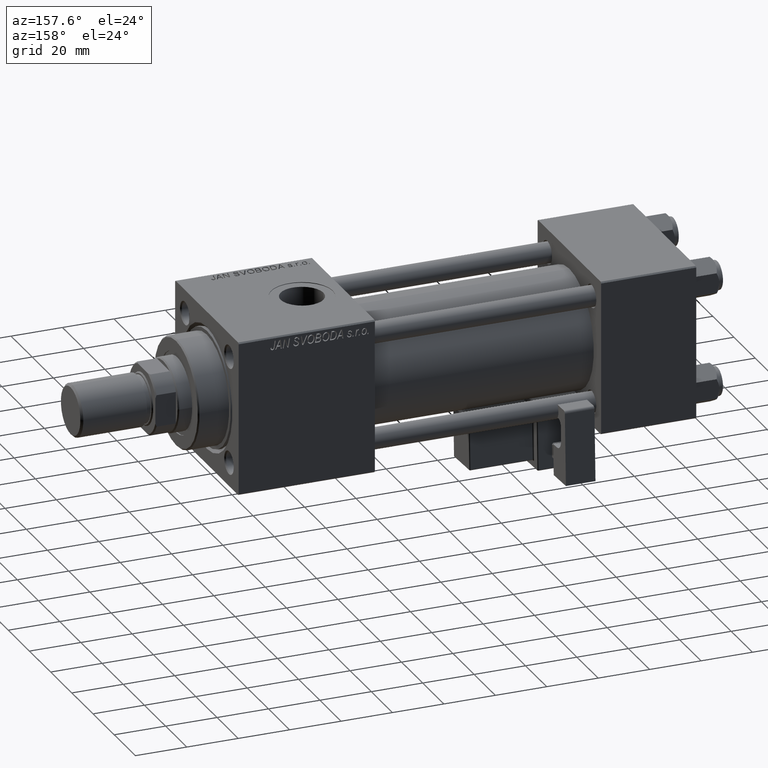
[diagram: clean part render]
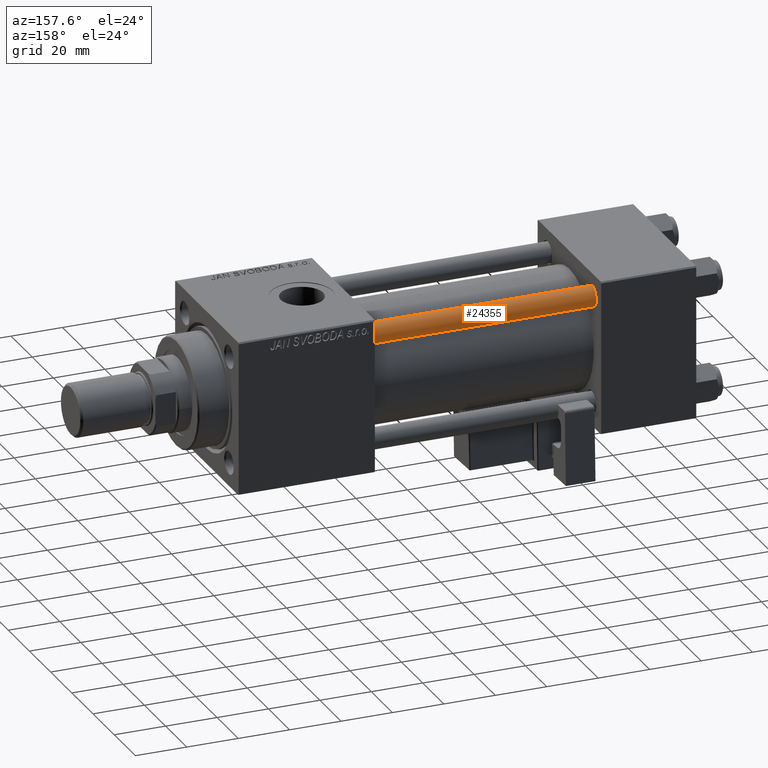
[diagram: same view with one face highlighted and labeled with its STEP entity id]
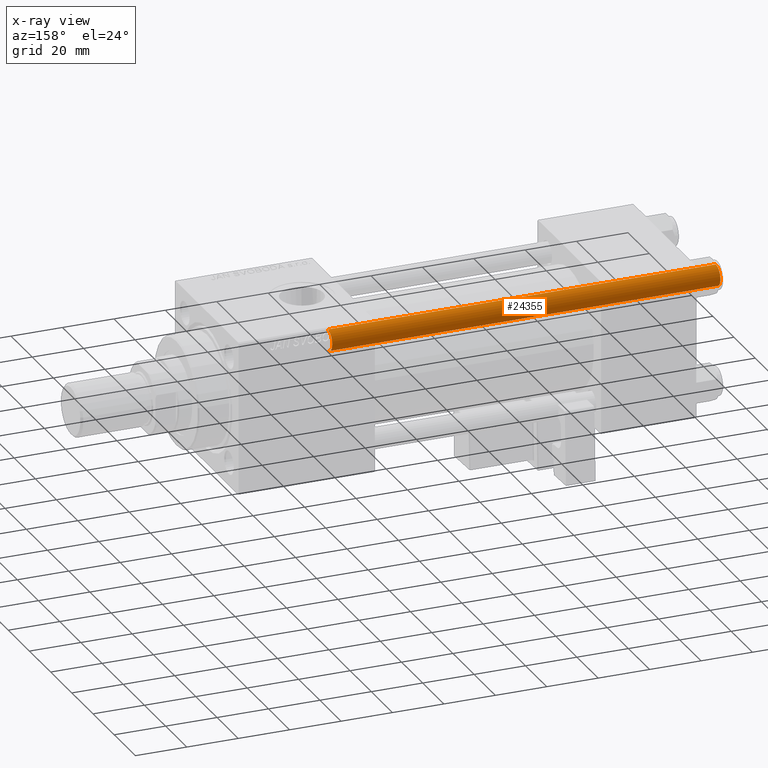
[diagram: x-ray of the same camera — body ghosted, the highlighted face saturated]
A machine part, auxiliary view. The second image highlights one B-rep face of the part: STEP entity #24355.
The next image is the same camera in x-ray: the body ghosted, the highlighted face saturated — about 0% of this face is hidden behind the body in this view.
In plain terms, the highlighted cylindrical surface (edge-blend (fillet) strip) has radius 4 mm, axis along (-1, 0, 0).
Its self-contained STEP definition (entity closure, byte-faithful):
#60 = EDGE_CURVE ( 'NONE', #52275, #19799, #27847, .T. ) ;
#2277 = CARTESIAN_POINT ( 'NONE',  ( 0.000000000000000000, 0.000000000000000000, 0.5000000000000281997 ) ) ;
#4631 = ORIENTED_EDGE ( 'NONE', *, *, #22932, .T. ) ;
#4810 = CIRCLE ( 'NONE', #38136, 4.000000000000000000 ) ;
#6757 = DIRECTION ( 'NONE',  ( -0.000000000000000000, -0.000000000000000000, -1.000000000000000000 ) ) ;
#6854 = EDGE_CURVE ( 'NONE', #19799, #11302, #4810, .T. ) ;
#6908 = CARTESIAN_POINT ( 'NONE',  ( -4.000000000000000000, 0.000000000000000000, 151.5000000000000284 ) ) ;
#8864 = VECTOR ( 'NONE', #6757, 1000.000000000000000 ) ;
#9925 = CARTESIAN_POINT ( 'NONE',  ( -4.000000000000000000, 0.000000000000000000, 152.0000000000000000 ) ) ;
#11188 = CARTESIAN_POINT ( 'NONE',  ( 0.000000000000000000, 0.000000000000000000, 152.0000000000000000 ) ) ;
#11302 = VERTEX_POINT ( 'NONE', #19629 ) ;
#12077 = VERTEX_POINT ( 'NONE', #6908 ) ;
#12345 = VECTOR ( 'NONE', #37434, 1000.000000000000000 ) ;
#12777 = CIRCLE ( 'NONE', #47759, 4.000000000000000000 ) ;
#14539 = AXIS2_PLACEMENT_3D ( 'NONE', #11188, #51780, #40014 ) ;
#16095 = DIRECTION ( 'NONE',  ( 1.000000000000000000, 0.000000000000000000, 0.000000000000000000 ) ) ;
#18586 = DIRECTION ( 'NONE',  ( -0.000000000000000000, -0.000000000000000000, 1.000000000000000000 ) ) ;
#19629 = CARTESIAN_POINT ( 'NONE',  ( -4.000000000000000000, 0.000000000000000000, 0.5000000000000281997 ) ) ;
#19799 = VERTEX_POINT ( 'NONE', #36280 ) ;
#21154 = ORIENTED_EDGE ( 'NONE', *, *, #60, .T. ) ;
#22932 = EDGE_CURVE ( 'NONE', #12077, #52275, #12777, .T. ) ;
#23580 = CARTESIAN_POINT ( 'NONE',  ( 4.000000000000000000, 4.898587196589412829E-16, 152.0000000000000000 ) ) ;
#24355 = ADVANCED_FACE ( 'NONE', ( #35474 ), #43215, .T. ) ;
#26622 = CARTESIAN_POINT ( 'NONE',  ( 4.000000000000000000, 4.898587196589412829E-16, 151.5000000000000284 ) ) ;
#27327 = DIRECTION ( 'NONE',  ( 0.000000000000000000, 0.000000000000000000, -1.000000000000000000 ) ) ;
#27847 = LINE ( 'NONE', #23580, #8864 ) ;
#29959 = LINE ( 'NONE', #9925, #12345 ) ;
#30872 = DIRECTION ( 'NONE',  ( 1.000000000000000000, 0.000000000000000000, 0.000000000000000000 ) ) ;
#31600 = CARTESIAN_POINT ( 'NONE',  ( 0.000000000000000000, 0.000000000000000000, 151.5000000000000284 ) ) ;
#33023 = EDGE_LOOP ( 'NONE', ( #4631, #21154, #35650, #46545 ) ) ;
#35474 = FACE_OUTER_BOUND ( 'NONE', #33023, .T. ) ;
#35650 = ORIENTED_EDGE ( 'NONE', *, *, #6854, .T. ) ;
#36280 = CARTESIAN_POINT ( 'NONE',  ( 4.000000000000000000, 4.898587196589412829E-16, 0.5000000000000281997 ) ) ;
#37434 = DIRECTION ( 'NONE',  ( -0.000000000000000000, -0.000000000000000000, -1.000000000000000000 ) ) ;
#38136 = AXIS2_PLACEMENT_3D ( 'NONE', #2277, #18586, #30872 ) ;
#40014 = DIRECTION ( 'NONE',  ( -1.000000000000000000, 0.000000000000000000, 0.000000000000000000 ) ) ;
#41106 = EDGE_CURVE ( 'NONE', #12077, #11302, #29959, .T. ) ;
#43215 = CYLINDRICAL_SURFACE ( 'NONE', #14539, 4.000000000000000000 ) ;
#46545 = ORIENTED_EDGE ( 'NONE', *, *, #41106, .F. ) ;
#47759 = AXIS2_PLACEMENT_3D ( 'NONE', #31600, #27327, #16095 ) ;
#51780 = DIRECTION ( 'NONE',  ( -0.000000000000000000, -0.000000000000000000, -1.000000000000000000 ) ) ;
#52275 = VERTEX_POINT ( 'NONE', #26622 ) ;